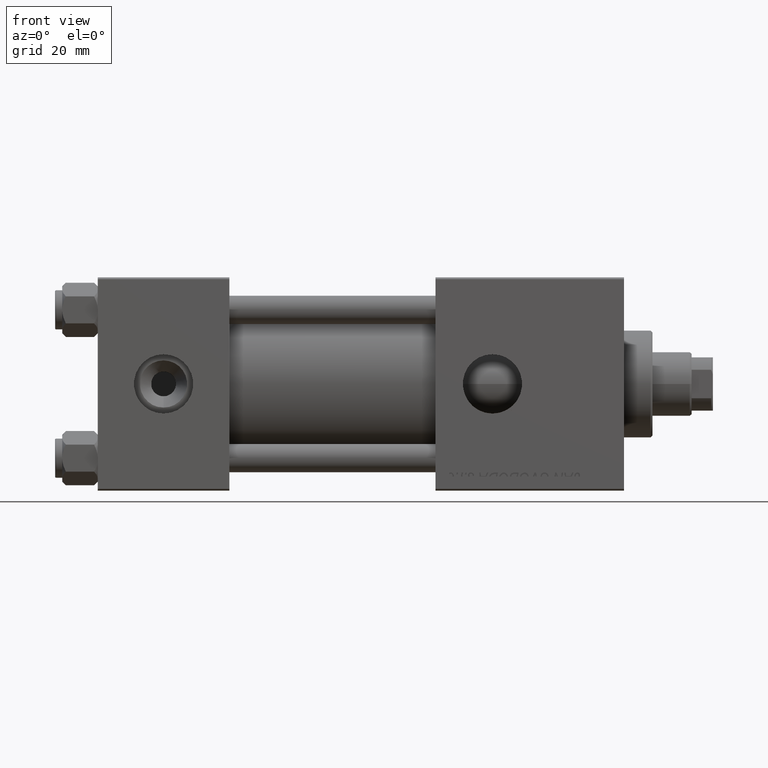
[diagram: clean part render]
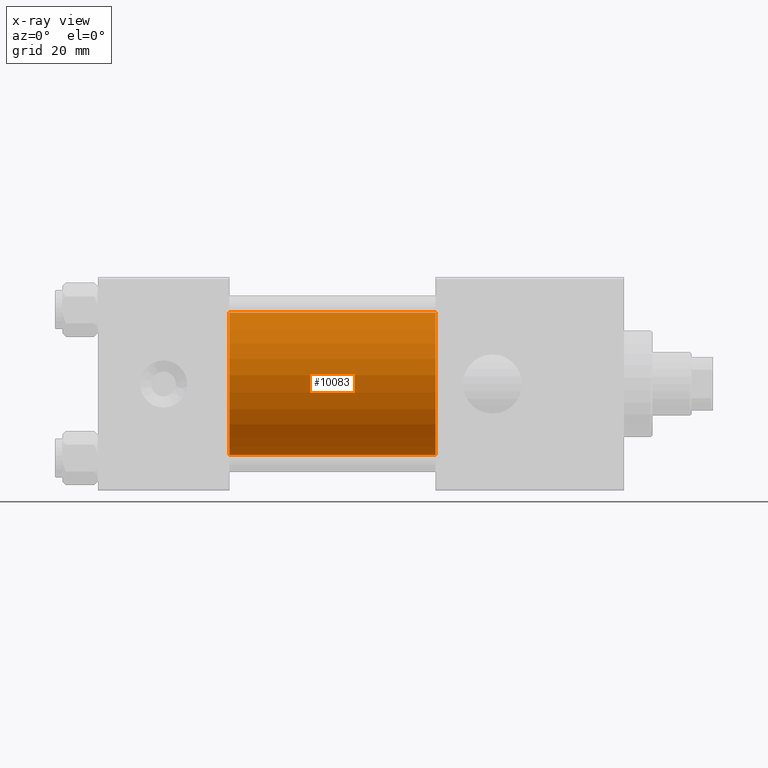
[diagram: x-ray — body ghosted, one internal face saturated and labeled with its STEP entity id]
A machine part, front view, then the same camera in x-ray: the body is ghosted and one INTERNAL B-rep face — a face not visible from any outside direction — is saturated and labeled: STEP entity #10083.
In plain terms, the highlighted cylindrical surface (partial cylindrical patch) has radius 20 mm, axis along (-1, -0, -0).
Its self-contained STEP definition (entity closure, byte-faithful):
#2245 = CARTESIAN_POINT ( 'NONE',  ( 95.00000000000000000, -2.602085213965210642E-15, 0.000000000000000000 ) ) ;
#3144 = DIRECTION ( 'NONE',  ( 1.000000000000000000, 0.000000000000000000, 0.000000000000000000 ) ) ;
#6863 = CARTESIAN_POINT ( 'NONE',  ( 37.00000000000000000, -2.602085213965210642E-15, 0.000000000000000000 ) ) ;
#8049 = CARTESIAN_POINT ( 'NONE',  ( 37.00000000000000000, -1.527916156705046464E-16, -20.00000000000000000 ) ) ;
#8833 = ORIENTED_EDGE ( 'NONE', *, *, #14634, .F. ) ;
#9674 = EDGE_CURVE ( 'NONE', #40612, #20409, #52096, .T. ) ;
#10083 = ADVANCED_FACE ( 'NONE', ( #47648 ), #11690, .F. ) ;
#11177 = CARTESIAN_POINT ( 'NONE',  ( 95.00000000000000000, -2.602085213965210642E-15, 0.000000000000000000 ) ) ;
#11690 = CYLINDRICAL_SURFACE ( 'NONE', #51276, 20.00000000000000000 ) ;
#12074 = VERTEX_POINT ( 'NONE', #8049 ) ;
#13283 = DIRECTION ( 'NONE',  ( -1.000000000000000000, -0.000000000000000000, -0.000000000000000000 ) ) ;
#14634 = EDGE_CURVE ( 'NONE', #36856, #12074, #46938, .T. ) ;
#14866 = AXIS2_PLACEMENT_3D ( 'NONE', #6863, #3144, #23000 ) ;
#15014 = EDGE_LOOP ( 'NONE', ( #52321, #20892, #8833, #26495 ) ) ;
#17878 = CARTESIAN_POINT ( 'NONE',  ( 95.00000000000000000, -2.602085213965210642E-15, 20.00000000000000000 ) ) ;
#19632 = DIRECTION ( 'NONE',  ( -1.000000000000000000, -0.000000000000000000, -0.000000000000000000 ) ) ;
#20409 = VERTEX_POINT ( 'NONE', #42507 ) ;
#20887 = AXIS2_PLACEMENT_3D ( 'NONE', #2245, #22898, #39000 ) ;
#20892 = ORIENTED_EDGE ( 'NONE', *, *, #45250, .T. ) ;
#21100 = LINE ( 'NONE', #32731, #25201 ) ;
#22898 = DIRECTION ( 'NONE',  ( 1.000000000000000000, 0.000000000000000000, 0.000000000000000000 ) ) ;
#23000 = DIRECTION ( 'NONE',  ( 0.000000000000000000, 0.000000000000000000, -1.000000000000000000 ) ) ;
#25201 = VECTOR ( 'NONE', #37461, 1000.000000000000000 ) ;
#26495 = ORIENTED_EDGE ( 'NONE', *, *, #27815, .F. ) ;
#27815 = EDGE_CURVE ( 'NONE', #40612, #36856, #44491, .T. ) ;
#32731 = CARTESIAN_POINT ( 'NONE',  ( 95.00000000000000000, -1.527916156705046464E-16, -20.00000000000000000 ) ) ;
#35473 = VECTOR ( 'NONE', #13283, 1000.000000000000000 ) ;
#36856 = VERTEX_POINT ( 'NONE', #46640 ) ;
#37461 = DIRECTION ( 'NONE',  ( -1.000000000000000000, -0.000000000000000000, -0.000000000000000000 ) ) ;
#39000 = DIRECTION ( 'NONE',  ( 0.000000000000000000, 0.000000000000000000, -1.000000000000000000 ) ) ;
#39458 = DIRECTION ( 'NONE',  ( 0.000000000000000000, 0.000000000000000000, 1.000000000000000000 ) ) ;
#40612 = VERTEX_POINT ( 'NONE', #17878 ) ;
#42507 = CARTESIAN_POINT ( 'NONE',  ( 95.00000000000000000, -1.527916156705046464E-16, -20.00000000000000000 ) ) ;
#44491 = LINE ( 'NONE', #45276, #35473 ) ;
#45250 = EDGE_CURVE ( 'NONE', #20409, #12074, #21100, .T. ) ;
#45276 = CARTESIAN_POINT ( 'NONE',  ( 95.00000000000000000, -2.602085213965210642E-15, 20.00000000000000000 ) ) ;
#46640 = CARTESIAN_POINT ( 'NONE',  ( 37.00000000000000000, -2.602085213965210642E-15, 20.00000000000000000 ) ) ;
#46938 = CIRCLE ( 'NONE', #14866, 20.00000000000000000 ) ;
#47648 = FACE_OUTER_BOUND ( 'NONE', #15014, .T. ) ;
#51276 = AXIS2_PLACEMENT_3D ( 'NONE', #11177, #19632, #39458 ) ;
#52096 = CIRCLE ( 'NONE', #20887, 20.00000000000000000 ) ;
#52321 = ORIENTED_EDGE ( 'NONE', *, *, #9674, .T. ) ;